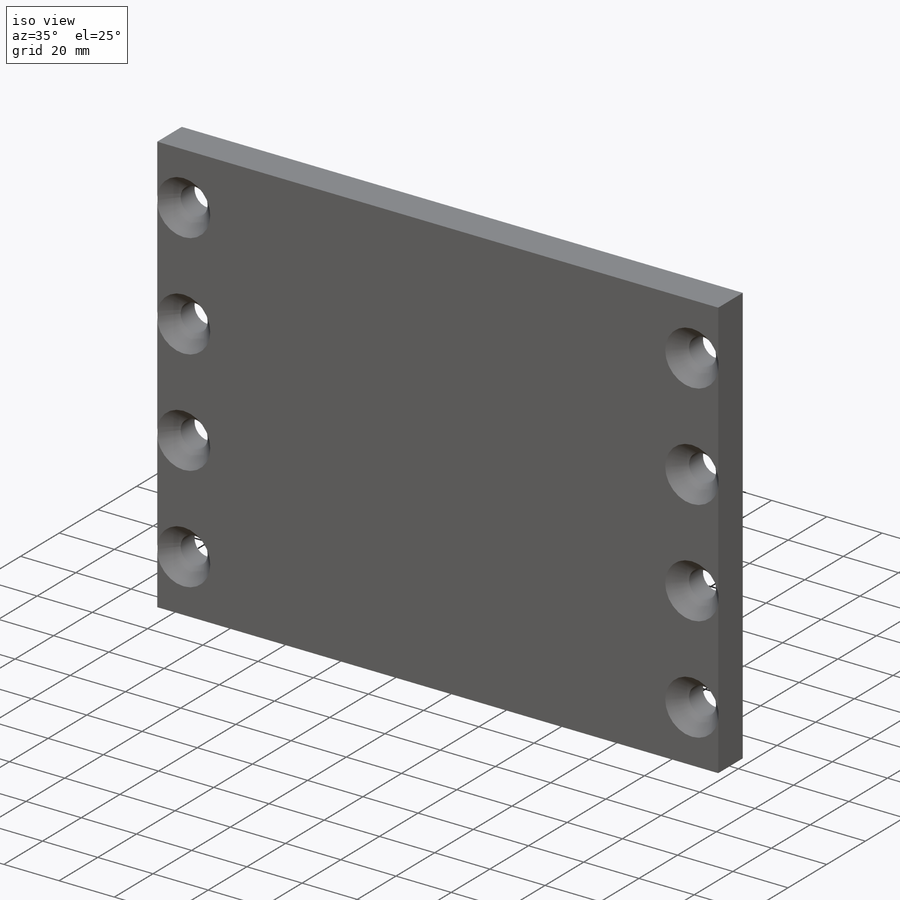
[diagram: iso view]
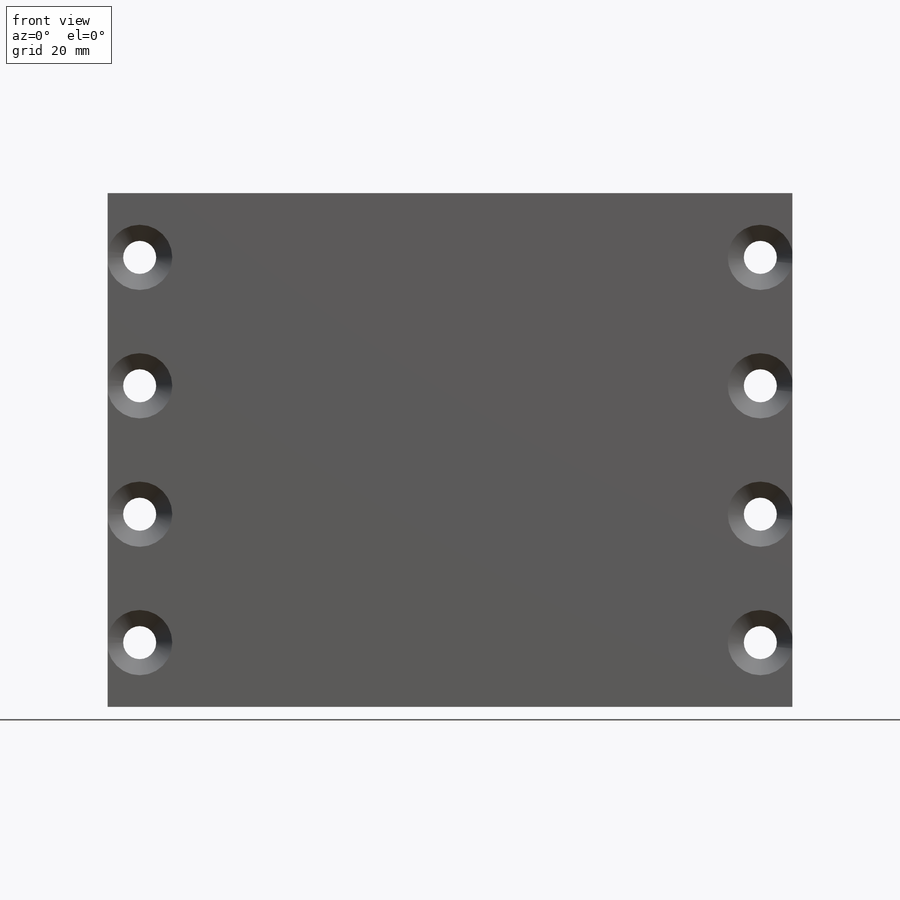
[diagram: front view]
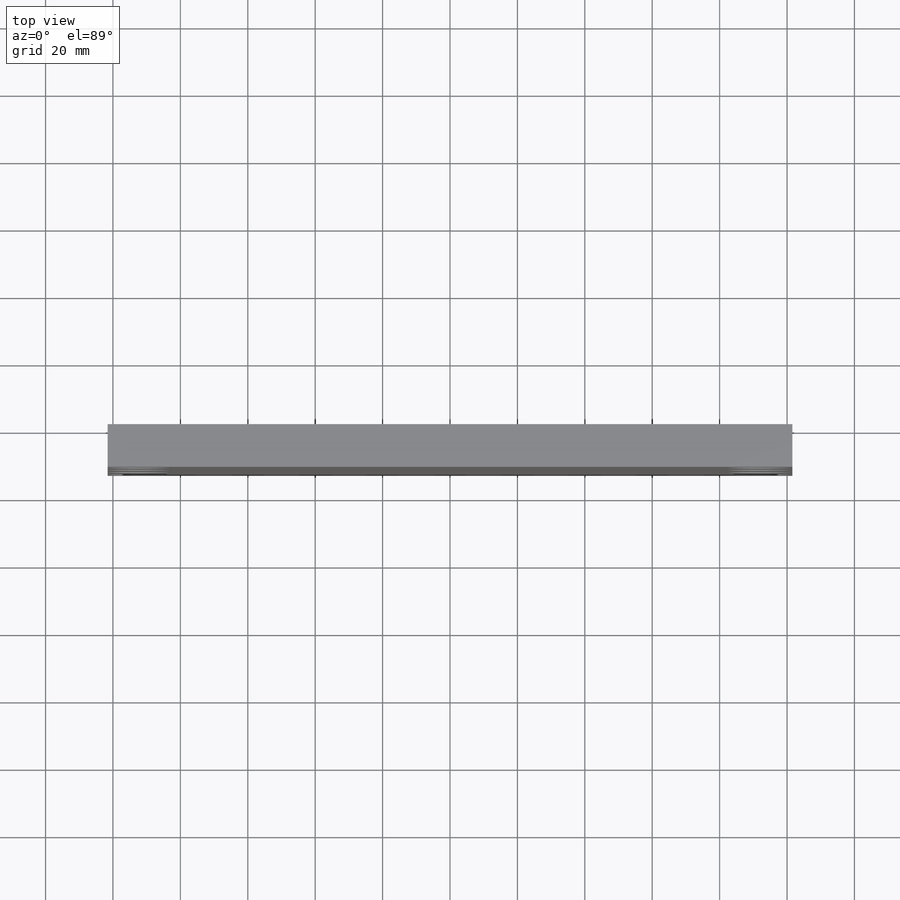
[diagram: top view]
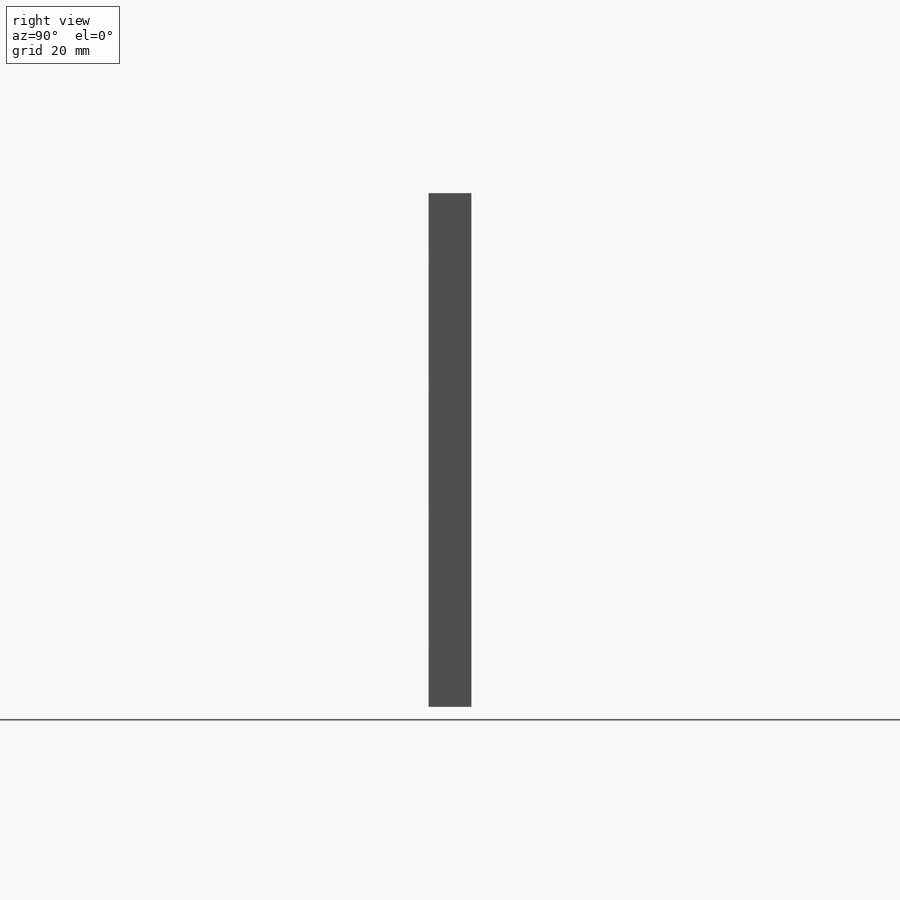
[diagram: right view]
SOLIDWORKS PART (.sldprt)
format: sldprt  version: not decoded by parser v0  size: 219,648 bytes
history: native  units: mm
features: sketch x5, material x1, extrude x1, hole x1 (+12 scaffold rows collapsed)
feature tree (20):
  scaffold x12  (default folders/planes/origin — collapsed)
  material  "Material <not specified>"
  sketch  "Sketch1"  dims[D1=203.2mm D2=152.4mm]
  extrude  "Boss-Extrude1"  Depth=12.7mm
  hole  "CSK for 3/8 Flat Head Machine Screw1"  Diameter=9.8044mm Depth=12.7mm
  sketch  "Sketch3"  dims[D1=114.3mm D2=114.3mm D3=184.15mm D4=38.1mm D5=38.1mm D6=38.1mm D7=38.1mm]
  sketch  "Sketch2"  dims[hole-wizard template sketch: 54 standard entries collapsed; hole parameters kept: c17.Thru Hole Dia.=9.8044mm c17.Thru Hole Depth=12.7mm c17.Near C'Sink Dia.=19.3548mm c17.D4=~3.666174mm c17.Near C'Sink Angle=82.0deg]
  sketch  "Sketch4"
  sketch  "Sketch5"
decode coverage: 5 of 7 modeling features carry decoded parameters
note: ~ marks probable driven/reference dimensions
note: suppression state not decoded; provenance and decode notes live in map.json
